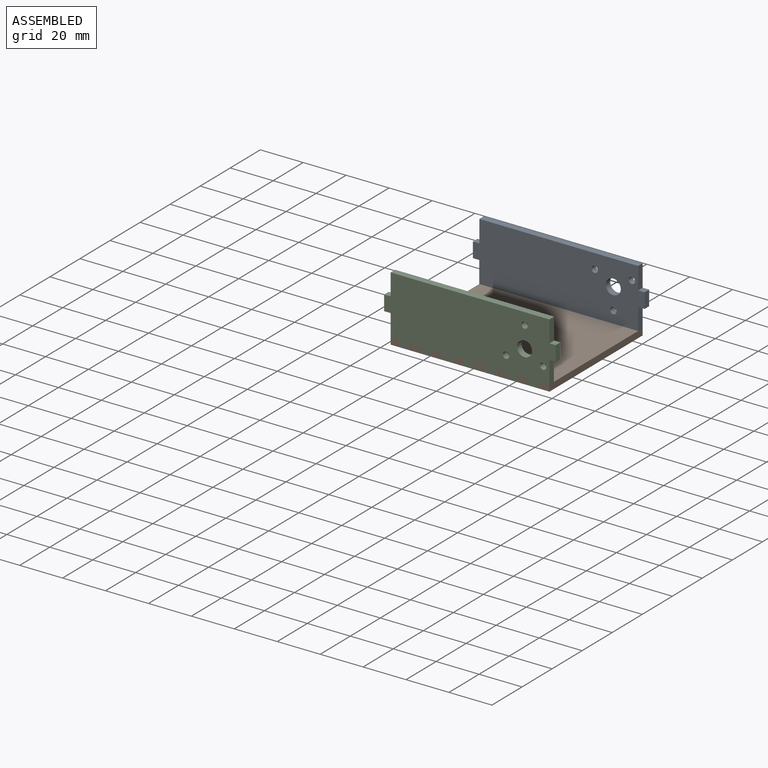
[diagram: assembled view]
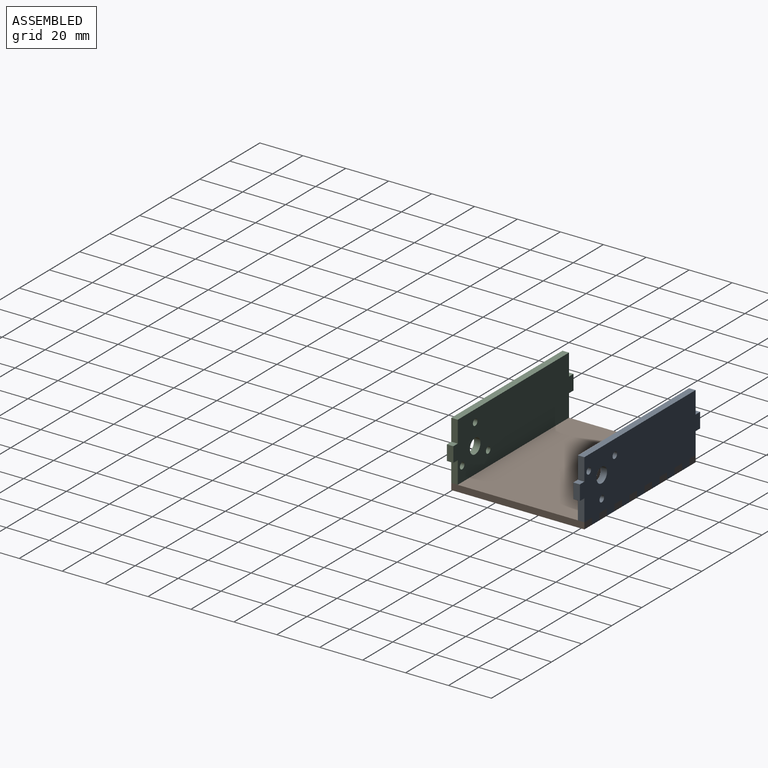
[diagram: assembled view, second angle]
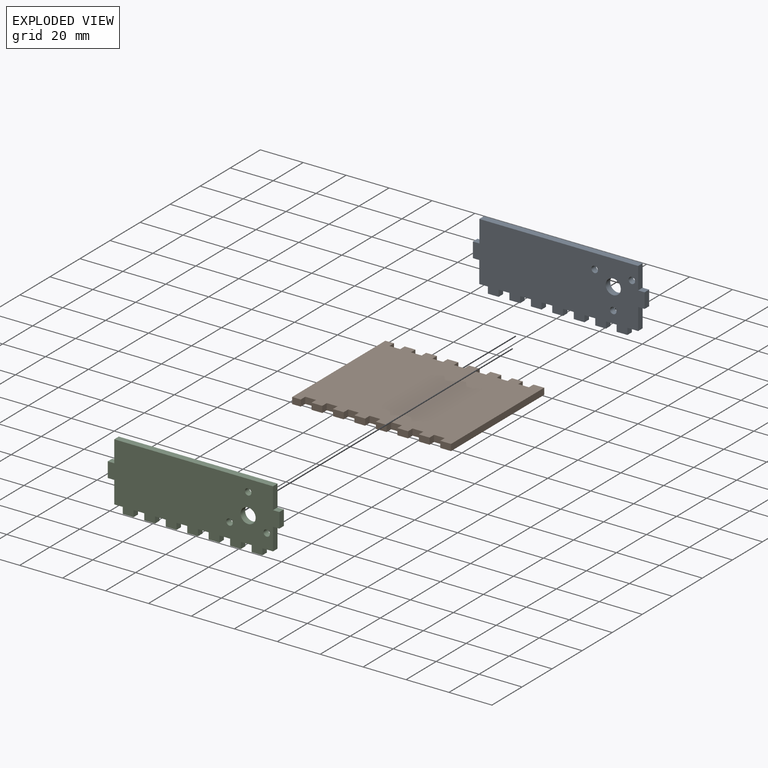
[diagram: exploded view]
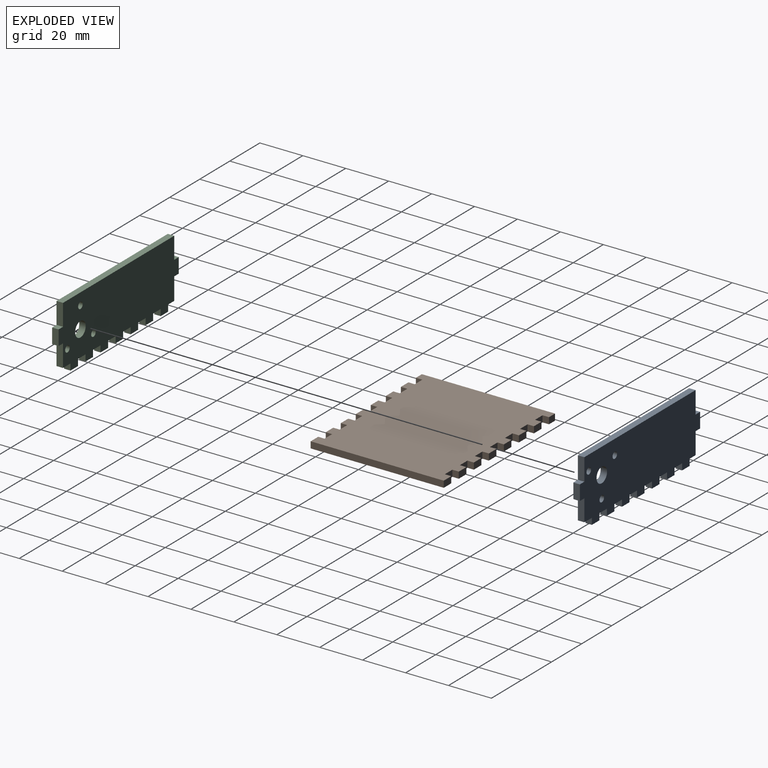
[diagram: exploded view, second angle]
ASSEMBLY  parts=3 mates=2
PART A: 46 faces, bbox 80x30.4x3 mm
  f0: plane 3x3mm, normal (-1,0,0), area 9mm2, adj f1,f40,f44,f45
  f1: plane 5x3mm, normal (0,1,0), area 15mm2, adj f0,f2,f44,f45
  f2: plane 3x3mm, normal (1,0,0), area 9mm2, adj f1,f3,f44,f45
  f3: plane 5x3mm, normal (0,1,0), area 15mm2, adj f2,f4,f44,f45
  f4: plane 3x3mm, normal (-1,0,0), area 9mm2, adj f3,f5,f44,f45
  f5: plane 5x3mm, normal (0,1,0), area 15mm2, adj f4,f6,f44,f45
  f6: plane 3x3mm, normal (1,0,0), area 9mm2, adj f5,f7,f44,f45
  f7: plane 5x3mm, normal (0,1,0), area 15mm2, adj f6,f8,f44,f45
  f8: plane 3x3mm, normal (-1,0,0), area 9mm2, adj f7,f9,f44,f45
  f9: plane 5x3mm, normal (0,1,0), area 15mm2, adj f8,f10,f44,f45
  f10: plane 3x3mm, normal (1,0,0), area 9mm2, adj f9,f11,f44,f45
  f11: plane 5x3mm, normal (0,1,0), area 15mm2, adj f10,f12,f44,f45
  f12: plane 3x3mm, normal (-1,0,0), area 9mm2, adj f11,f13,f44,f45
  f13: plane 4x3mm, normal (0,1,0), area 12mm2, adj f12,f14,f44,f45
  f14: plane 10.1x3mm, normal (-1,0,0), area 30.3mm2, adj f13,f15,f44,f45
  f15: plane 3x3mm, normal (0,1,0), area 9mm2, adj f14,f16,f44,f45
  f16: plane 7x3mm, normal (-1,0,0), area 21mm2, adj f15,f17,f44,f45
  f17: plane 3x3mm, normal (0,-1,0), area 9mm2, adj f16,f18,f44,f45
  f18: plane 10.3x3mm, normal (-1,0,0), area 30.9mm2, adj f17,f19,f44,f45
  f19: plane 74x3mm, normal (0,-1,0), area 222mm2, adj f18,f20,f44,f45
  f20: plane 10.3x3mm, normal (1,0,0), area 30.9mm2, adj f19,f21,f44,f45
  f21: plane 3x3mm, normal (0,-1,0), area 9mm2, adj f20,f22,f44,f45
  f22: plane 7x3mm, normal (1,0,0), area 21mm2, adj f21,f23,f44,f45
  f23: plane 3x3mm, normal (0,1,0), area 9mm2, adj f22,f24,f44,f45
  f24: plane 10.1x3mm, normal (1,0,0), area 30.3mm2, adj f23,f25,f44,f45
  f25: plane 5.01x3mm, normal (0,1,0), area 15mm2, adj f24,f26,f44,f45
  f26: plane 3x3mm, normal (1,0,0), area 9mm2, adj f25,f27,f44,f45
  f27: plane 5x3mm, normal (0,1,0), area 15mm2, adj f26,f28,f44,f45
  f28: plane 3x3mm, normal (-1,0,0), area 9mm2, adj f27,f29,f44,f45
  f29: plane 5x3mm, normal (0,1,0), area 15mm2, adj f28,f30,f44,f45
  f30: plane 3x3mm, normal (1,0,0), area 9mm2, adj f29,f31,f44,f45
  f31: plane 5x3mm, normal (0,1,0), area 15mm2, adj f30,f32,f44,f45
  f32: plane 3x3mm, normal (-1,0,0), area 9mm2, adj f31,f33,f44,f45
  f33: plane 5x3mm, normal (0,1,0), area 15mm2, adj f32,f34,f44,f45
  f34: plane 3x3mm, normal (1,0,0), area 9mm2, adj f33,f35,f44,f45
  f35: plane 5x3mm, normal (0,1,0), area 15mm2, adj f34,f36,f44,f45
  f36: plane 3x3mm, normal (-1,0,0), area 9mm2, adj f35,f37,f44,f45
  f37: plane 5x3mm, normal (0,1,0), area 15mm2, adj f36,f38,f44,f45
  f38: plane 3x3mm, normal (1,0,0), area 9mm2, adj f37,f40,f44,f45
  f39: cylinder r=1.5mm len=3mm, axis (0,0,-1), area 28.3mm2, adj f44,f45
  f40: plane 5x3mm, normal (0,1,0), area 15mm2, adj f0,f38,f44,f45
  f41: cylinder r=1.5mm len=3mm, axis (0,0,-1), area 28.3mm2, adj f44,f45
  f42: cylinder r=3.5mm len=7mm, axis (0,0,-1), area 66mm2, adj f44,f45
  f43: cylinder r=1.5mm len=3mm, axis (0,0,-1), area 28.3mm2, adj f44,f45
  f44: plane 80.01x30.4mm, normal (0,0,1), area 2115.4mm2, adj f0,f1,f2,f3,f4,f5,f6,f7
  f45: plane 80.01x30.4mm, normal (0,0,-1), area 2115.4mm2, adj f0,f1,f2,f3,f4,f5,f6,f7
PART B: 62 faces, bbox 74x62x3 mm
  f0: plane 3x3mm, normal (-1,0,0), area 9mm2, adj f1,f59,f60,f61
  f1: plane 5x3mm, normal (0,-1,0), area 15mm2, adj f0,f2,f60,f61
  f2: plane 3x3mm, normal (1,0,0), area 9mm2, adj f1,f3,f60,f61
  f3: plane 5x3mm, normal (0,-1,0), area 15mm2, adj f2,f4,f60,f61
  f4: plane 3x3mm, normal (-1,0,0), area 9mm2, adj f3,f5,f60,f61
  f5: plane 5x3mm, normal (0,-1,0), area 15mm2, adj f4,f6,f60,f61
  f6: plane 3x3mm, normal (1,0,0), area 9mm2, adj f5,f7,f60,f61
  f7: plane 5x3mm, normal (0,-1,0), area 15mm2, adj f6,f8,f60,f61
  f8: plane 3x3mm, normal (-1,0,0), area 9mm2, adj f7,f9,f60,f61
  f9: plane 5x3mm, normal (0,-1,0), area 15mm2, adj f8,f10,f60,f61
  f10: plane 3x3mm, normal (1,0,0), area 9mm2, adj f9,f11,f60,f61
  f11: plane 5x3mm, normal (0,-1,0), area 15mm2, adj f10,f12,f60,f61
  f12: plane 3x3mm, normal (-1,0,0), area 9mm2, adj f11,f13,f60,f61
  f13: plane 5x3mm, normal (0,-1,0), area 15mm2, adj f12,f14,f60,f61
  f14: plane 62x3mm, normal (1,0,0), area 186mm2, adj f13,f15,f60,f61
  f15: plane 5x3mm, normal (0,1,0), area 15mm2, adj f14,f16,f60,f61
  f16: plane 3x3mm, normal (-1,0,0), area 9mm2, adj f15,f17,f60,f61
  f17: plane 5x3mm, normal (0,1,0), area 15mm2, adj f16,f18,f60,f61
  f18: plane 3x3mm, normal (1,0,0), area 9mm2, adj f17,f19,f60,f61
  f19: plane 5x3mm, normal (0,1,0), area 15mm2, adj f18,f20,f60,f61
  f20: plane 3x3mm, normal (-1,0,0), area 9mm2, adj f19,f21,f60,f61
  f21: plane 5x3mm, normal (0,1,0), area 15mm2, adj f20,f22,f60,f61
  f22: plane 3x3mm, normal (1,0,0), area 9mm2, adj f21,f23,f60,f61
  f23: plane 5x3mm, normal (0,1,0), area 15mm2, adj f22,f24,f60,f61
  f24: plane 3x3mm, normal (-1,0,0), area 9mm2, adj f23,f25,f60,f61
  f25: plane 5x3mm, normal (0,1,0), area 15mm2, adj f24,f26,f60,f61
  f26: plane 3x3mm, normal (1,0,0), area 9mm2, adj f25,f27,f60,f61
  f27: plane 5x3mm, normal (0,1,0), area 15mm2, adj f26,f28,f60,f61
  f28: plane 3x3mm, normal (-1,0,0), area 9mm2, adj f27,f29,f60,f61
  f29: plane 5x3mm, normal (0,1,0), area 15mm2, adj f28,f30,f60,f61
  f30: plane 3x3mm, normal (1,0,0), area 9mm2, adj f29,f31,f60,f61
  f31: plane 5x3mm, normal (0,1,0), area 15mm2, adj f30,f32,f60,f61
  f32: plane 3x3mm, normal (-1,0,0), area 9mm2, adj f31,f33,f60,f61
  f33: plane 5x3mm, normal (0,1,0), area 15mm2, adj f32,f34,f60,f61
  f34: plane 3x3mm, normal (1,0,0), area 9mm2, adj f33,f35,f60,f61
  f35: plane 5x3mm, normal (0,1,0), area 15mm2, adj f34,f36,f60,f61
  f36: plane 3x3mm, normal (-1,0,0), area 9mm2, adj f35,f37,f60,f61
  f37: plane 5x3mm, normal (0,1,0), area 15mm2, adj f36,f38,f60,f61
  f38: plane 3x3mm, normal (1,0,0), area 9mm2, adj f37,f39,f60,f61
  f39: plane 5x3mm, normal (0,1,0), area 15mm2, adj f38,f40,f60,f61
  f40: plane 3x3mm, normal (-1,0,0), area 9mm2, adj f39,f41,f60,f61
  f41: plane 5x3mm, normal (0,1,0), area 15mm2, adj f40,f42,f60,f61
  f42: plane 3x3mm, normal (1,0,0), area 9mm2, adj f41,f43,f60,f61
  f43: plane 4x3mm, normal (0,1,0), area 12mm2, adj f42,f44,f60,f61
  f44: plane 62x3mm, normal (-1,0,0), area 186mm2, adj f43,f45,f60,f61
  f45: plane 4x3mm, normal (0,-1,0), area 12mm2, adj f44,f46,f60,f61
  f46: plane 3x3mm, normal (1,0,0), area 9mm2, adj f45,f47,f60,f61
  f47: plane 5x3mm, normal (0,-1,0), area 15mm2, adj f46,f48,f60,f61
  f48: plane 3x3mm, normal (-1,0,0), area 9mm2, adj f47,f49,f60,f61
  f49: plane 5x3mm, normal (0,-1,0), area 15mm2, adj f48,f50,f60,f61
  f50: plane 3x3mm, normal (1,0,0), area 9mm2, adj f49,f51,f60,f61
  f51: plane 5x3mm, normal (0,-1,0), area 15mm2, adj f50,f52,f60,f61
  f52: plane 3x3mm, normal (-1,0,0), area 9mm2, adj f51,f53,f60,f61
  f53: plane 5x3mm, normal (0,-1,0), area 15mm2, adj f52,f54,f60,f61
  f54: plane 3x3mm, normal (1,0,0), area 9mm2, adj f53,f55,f60,f61
  f55: plane 5x3mm, normal (0,-1,0), area 15mm2, adj f54,f56,f60,f61
  f56: plane 3x3mm, normal (-1,0,0), area 9mm2, adj f55,f57,f60,f61
  f57: plane 5x3mm, normal (0,-1,0), area 15mm2, adj f56,f58,f60,f61
  f58: plane 3x3mm, normal (1,0,0), area 9mm2, adj f57,f59,f60,f61
  f59: plane 5x3mm, normal (0,-1,0), area 15mm2, adj f0,f58,f60,f61
  f60: plane 74x62mm, normal (0,0,1), area 4378mm2, adj f0,f1,f2,f3,f4,f5,f6,f7
  f61: plane 74x62mm, normal (0,0,-1), area 4378mm2, adj f0,f1,f2,f3,f4,f5,f6,f7
PART C: 46 faces, bbox 79.9x30.4x3 mm
  f0: plane 3x3mm, normal (-1,0,0), area 9mm2, adj f1,f40,f44,f45
  f1: plane 5x3mm, normal (0,-1,0), area 15mm2, adj f0,f2,f44,f45
  f2: plane 3x3mm, normal (1,0,0), area 9mm2, adj f1,f3,f44,f45
  f3: plane 5x3mm, normal (0,-1,0), area 15mm2, adj f2,f4,f44,f45
  f4: plane 3x3mm, normal (-1,0,0), area 9mm2, adj f3,f5,f44,f45
  f5: plane 5x3mm, normal (0,-1,0), area 15mm2, adj f4,f6,f44,f45
  f6: plane 3x3mm, normal (1,0,0), area 9mm2, adj f5,f7,f44,f45
  f7: plane 5x3mm, normal (0,-1,0), area 15mm2, adj f6,f8,f44,f45
  f8: plane 3x3mm, normal (-1,0,0), area 9mm2, adj f7,f9,f44,f45
  f9: plane 5x3mm, normal (0,-1,0), area 15mm2, adj f8,f10,f44,f45
  f10: plane 3x3mm, normal (1,0,0), area 9mm2, adj f9,f11,f44,f45
  f11: plane 5x3mm, normal (0,-1,0), area 15mm2, adj f10,f12,f44,f45
  f12: plane 3x3mm, normal (-1,0,0), area 9mm2, adj f11,f13,f44,f45
  f13: plane 5x3mm, normal (0,-1,0), area 15mm2, adj f12,f14,f44,f45
  f14: plane 3x3mm, normal (1,0,0), area 9mm2, adj f13,f15,f44,f45
  f15: plane 4.98x3mm, normal (0,-1,0), area 14.9mm2, adj f14,f16,f44,f45
  f16: plane 10.35x3mm, normal (1,0,0), area 31.1mm2, adj f15,f17,f44,f45
  f17: plane 3x2.94mm, normal (0,-1,0), area 8.8mm2, adj f16,f18,f44,f45
  f18: plane 7x3mm, normal (1,0,0), area 21mm2, adj f17,f19,f44,f45
  f19: plane 3x2.93mm, normal (0,1,0), area 8.8mm2, adj f18,f20,f44,f45
  f20: plane 10.05x3mm, normal (1,0,0), area 30.2mm2, adj f19,f21,f44,f45
  f21: plane 74x3mm, normal (0,1,0), area 222mm2, adj f20,f22,f44,f45
  f22: plane 10.1x3mm, normal (-1,0,0), area 30.3mm2, adj f21,f23,f44,f45
  f23: plane 3x3mm, normal (0,1,0), area 9mm2, adj f22,f24,f44,f45
  f24: plane 7x3mm, normal (-1,0,0), area 21mm2, adj f23,f25,f44,f45
  f25: plane 3x3mm, normal (0,-1,0), area 9mm2, adj f24,f26,f44,f45
  f26: plane 10.3x3mm, normal (-1,0,0), area 30.9mm2, adj f25,f27,f44,f45
  f27: plane 4x3mm, normal (0,-1,0), area 12mm2, adj f26,f28,f44,f45
  f28: plane 3x3mm, normal (-1,0,0), area 9mm2, adj f27,f29,f44,f45
  f29: plane 5x3mm, normal (0,-1,0), area 15mm2, adj f28,f30,f44,f45
  f30: plane 3x3mm, normal (1,0,0), area 9mm2, adj f29,f31,f44,f45
  f31: plane 5x3mm, normal (0,-1,0), area 15mm2, adj f30,f32,f44,f45
  f32: plane 3x3mm, normal (-1,0,0), area 9mm2, adj f31,f33,f44,f45
  f33: plane 5x3mm, normal (0,-1,0), area 15mm2, adj f32,f34,f44,f45
  f34: plane 3x3mm, normal (1,0,0), area 9mm2, adj f33,f35,f44,f45
  f35: plane 5x3mm, normal (0,-1,0), area 15mm2, adj f34,f36,f44,f45
  f36: plane 3x3mm, normal (-1,0,0), area 9mm2, adj f35,f37,f44,f45
  f37: plane 5x3mm, normal (0,-1,0), area 15mm2, adj f36,f38,f44,f45
  f38: plane 3x3mm, normal (1,0,0), area 9mm2, adj f37,f40,f44,f45
  f39: cylinder r=1.5mm len=3mm, axis (0,0,-1), area 28.3mm2, adj f44,f45
  f40: plane 5x3mm, normal (0,-1,0), area 15mm2, adj f0,f38,f44,f45
  f41: cylinder r=1.5mm len=3mm, axis (0,0,-1), area 28.3mm2, adj f44,f45
  f42: cylinder r=3.5mm len=7mm, axis (0,0,-1), area 66mm2, adj f44,f45
  f43: cylinder r=1.5mm len=3mm, axis (0,0,-1), area 28.3mm2, adj f44,f45
  f44: plane 79.93x30.4mm, normal (0,0,1), area 2114.5mm2, adj f0,f1,f2,f3,f4,f5,f6,f7
  f45: plane 79.93x30.4mm, normal (0,0,-1), area 2114.5mm2, adj f0,f1,f2,f3,f4,f5,f6,f7
PLACE A rot(axis=(-1,0,0),90deg) t=(0.64,20.61,29.03)mm
PLACE B t=(0.64,-7.39,12.43)mm
PLACE C rot(axis=(1,0,0),90deg) t=(0.63,-35.39,29.23)mm
MATE pin_slot B.f19 <-> A.f44  axis (0,1,0) through (25.14,23.61,15.43)mm
MATE pin_slot C.f44 <-> B.f9  axis (0,-1,0) through (25.14,-38.39,15.43)mm
